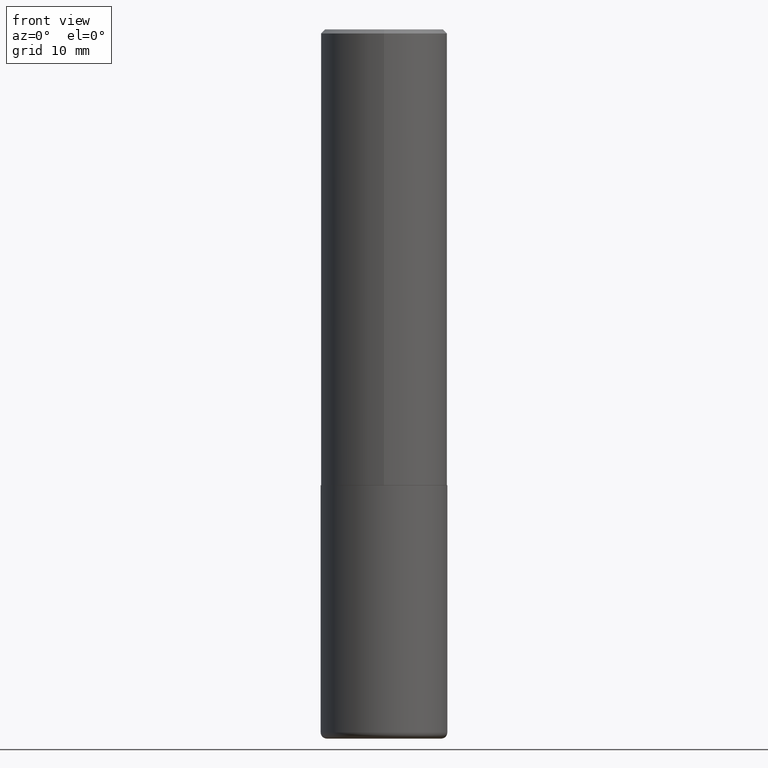
[diagram: clean part render]
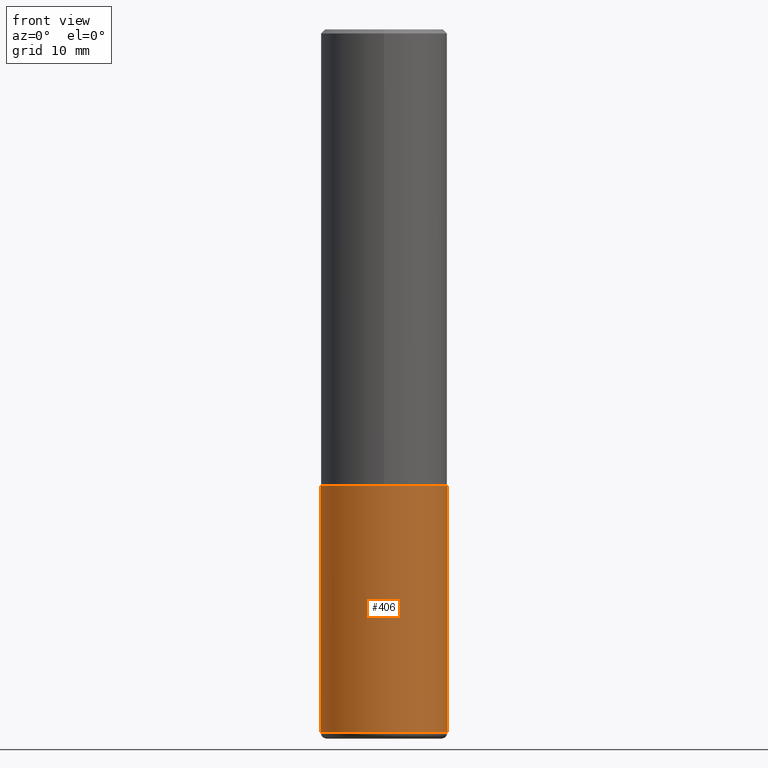
[diagram: same view with one face highlighted and labeled with its STEP entity id]
A machine part, front view. The second image highlights one B-rep face of the part: STEP entity #406.
In plain terms, the highlighted cylindrical surface (partial cylindrical patch) has radius 7.9375 mm, axis along (-0, 0, 1).
Its self-contained STEP definition (entity closure, byte-faithful):
#22 = CIRCLE ( 'NONE', #81, 0.3125000000000000000 ) ;
#23 = FACE_OUTER_BOUND ( 'NONE', #382, .T. ) ;
#28 = DIRECTION ( 'NONE',  ( 1.000000000000000000, -6.982962677686266711E-15, 4.876176775795936353E-29 ) ) ;
#35 = CARTESIAN_POINT ( 'NONE',  ( -0.3125000000000000555, -9.894994196535401314E-15, -3.469999999999999751 ) ) ;
#42 = LINE ( 'NONE', #100, #55 ) ;
#45 = VERTEX_POINT ( 'NONE', #396 ) ;
#52 = VERTEX_POINT ( 'NONE', #35 ) ;
#55 = VECTOR ( 'NONE', #368, 39.37007874015748143 ) ;
#56 = ORIENTED_EDGE ( 'NONE', *, *, #106, .T. ) ;
#59 = ORIENTED_EDGE ( 'NONE', *, *, #293, .T. ) ;
#61 = ORIENTED_EDGE ( 'NONE', *, *, #273, .F. ) ;
#72 = CIRCLE ( 'NONE', #276, 0.3124999999999999445 ) ;
#78 = AXIS2_PLACEMENT_3D ( 'NONE', #378, #325, #28 ) ;
#81 = AXIS2_PLACEMENT_3D ( 'NONE', #349, #117, #223 ) ;
#100 = CARTESIAN_POINT ( 'NONE',  ( 0.3125000000000000000, -2.182175836776958347E-15, 1.523805242436230075E-29 ) ) ;
#106 = EDGE_CURVE ( 'NONE', #323, #118, #42, .T. ) ;
#117 = DIRECTION ( 'NONE',  ( -2.445468806185136597E-29, 3.491481338843145583E-15, 1.000000000000000000 ) ) ;
#118 = VERTEX_POINT ( 'NONE', #340 ) ;
#154 = CARTESIAN_POINT ( 'NONE',  ( -0.3125000000000000000, 2.220446049250313081E-15, -1.537167215704658232E-29 ) ) ;
#156 = CYLINDRICAL_SURFACE ( 'NONE', #78, 0.3125000000000000000 ) ;
#158 = DIRECTION ( 'NONE',  ( -2.445468806185136877E-29, 3.491481338843145188E-15, 1.000000000000000000 ) ) ;
#186 = ORIENTED_EDGE ( 'NONE', *, *, #330, .F. ) ;
#187 = DIRECTION ( 'NONE',  ( -2.445468806185136597E-29, 3.491481338843145583E-15, 1.000000000000000000 ) ) ;
#191 = CARTESIAN_POINT ( 'NONE',  ( 0.3125000000000000555, -1.429761608256267432E-14, -3.469999999999999751 ) ) ;
#223 = DIRECTION ( 'NONE',  ( 1.000000000000000000, -6.982962677686265133E-15, 0.000000000000000000 ) ) ;
#248 = LINE ( 'NONE', #154, #401 ) ;
#273 = EDGE_CURVE ( 'NONE', #45, #118, #22, .T. ) ;
#276 = AXIS2_PLACEMENT_3D ( 'NONE', #317, #187, #356 ) ;
#293 = EDGE_CURVE ( 'NONE', #52, #323, #72, .T. ) ;
#317 = CARTESIAN_POINT ( 'NONE',  ( 8.485776757462424574E-29, -1.211544024578571439E-14, -3.469999999999999751 ) ) ;
#323 = VERTEX_POINT ( 'NONE', #191 ) ;
#325 = DIRECTION ( 'NONE',  ( -2.445468806185136597E-29, 3.491481338843145583E-15, 1.000000000000000000 ) ) ;
#330 = EDGE_CURVE ( 'NONE', #52, #45, #248, .T. ) ;
#340 = CARTESIAN_POINT ( 'NONE',  ( 0.3125000000000000000, -1.003800884917403364E-14, -2.249999999999999556 ) ) ;
#349 = CARTESIAN_POINT ( 'NONE',  ( 5.502304813916556222E-29, -7.855833012397075293E-15, -2.249999999999999556 ) ) ;
#356 = DIRECTION ( 'NONE',  ( 1.000000000000000000, -6.982962677686264344E-15, 0.000000000000000000 ) ) ;
#368 = DIRECTION ( 'NONE',  ( -2.445468806185136877E-29, 3.491481338843145188E-15, 1.000000000000000000 ) ) ;
#378 = CARTESIAN_POINT ( 'NONE',  ( 0.000000000000000000, 0.000000000000000000, 0.000000000000000000 ) ) ;
#382 = EDGE_LOOP ( 'NONE', ( #186, #59, #56, #61 ) ) ;
#396 = CARTESIAN_POINT ( 'NONE',  ( -0.3125000000000000000, -7.765190579841083341E-15, -2.249999999999999556 ) ) ;
#401 = VECTOR ( 'NONE', #158, 39.37007874015748143 ) ;
#406 = ADVANCED_FACE ( 'NONE', ( #23 ), #156, .T. ) ;